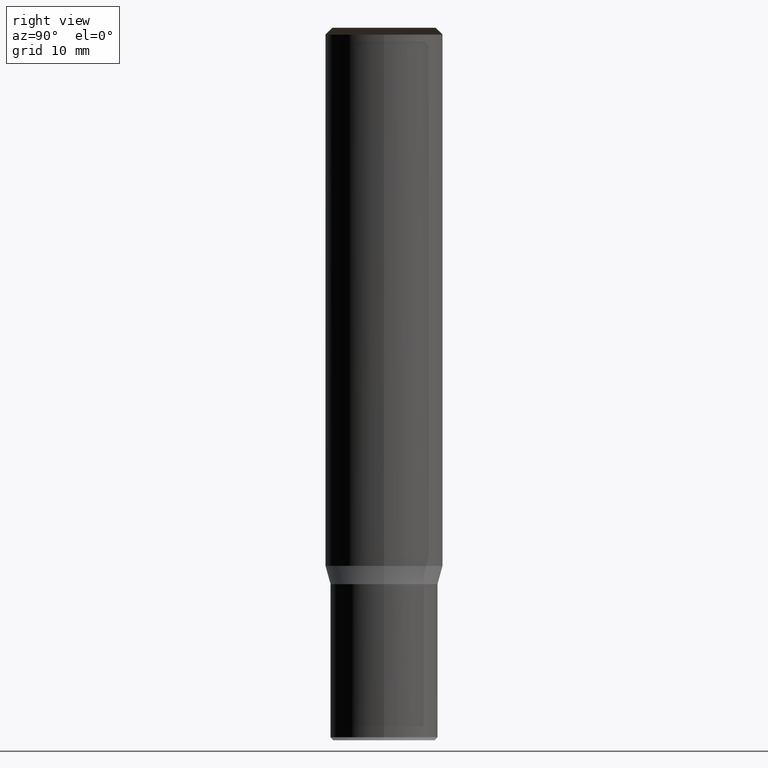
[diagram: clean part render]
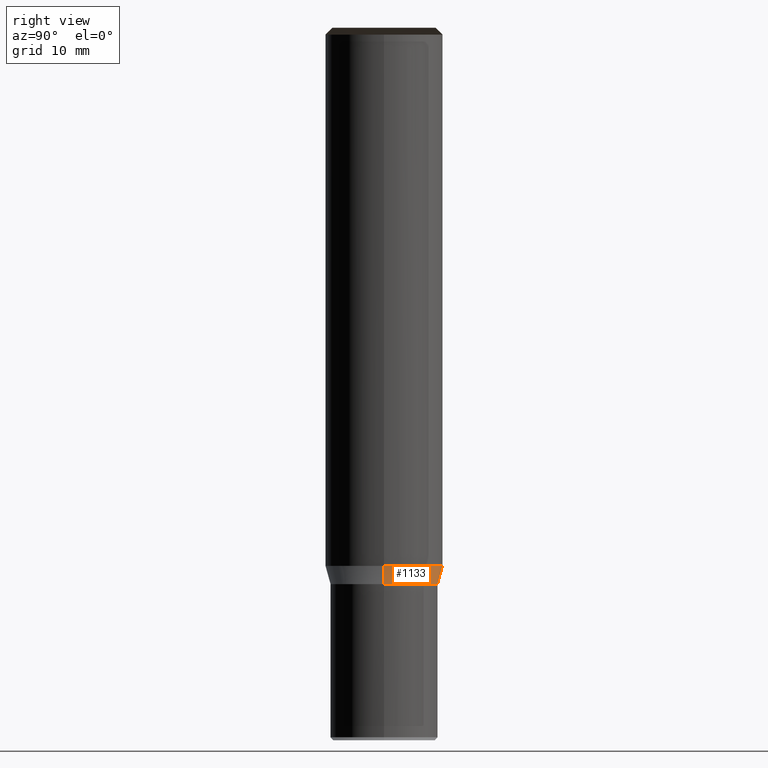
[diagram: same view with one face highlighted and labeled with its STEP entity id]
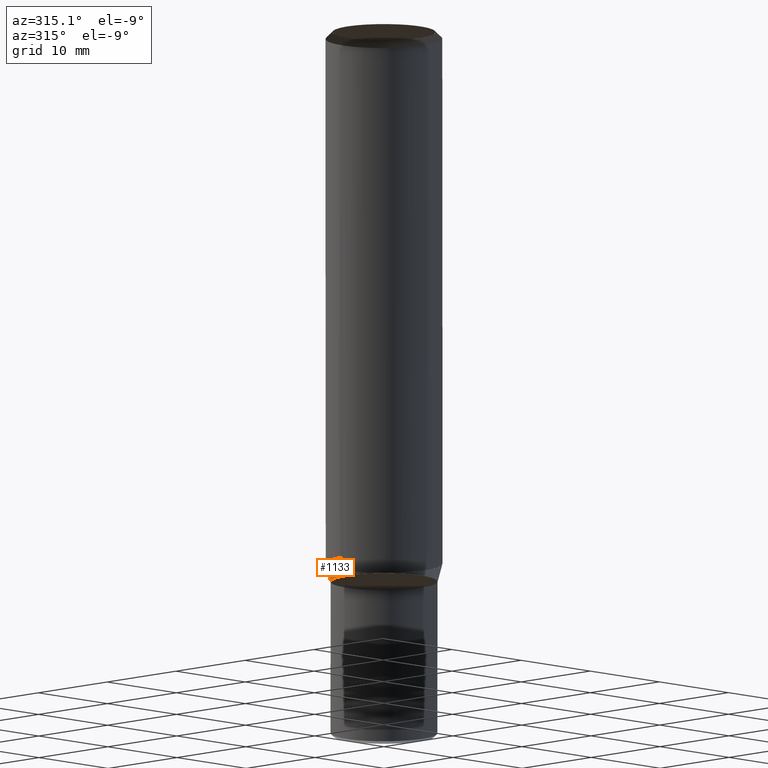
[diagram: same view with one face highlighted and labeled with its STEP entity id]
A machine part, right view. The second image highlights one B-rep face of the part: STEP entity #1133.
A second angle (auxiliary view) of the same face is appended — the face is thin or edge-on in the first view.
In plain terms, the highlighted face is a freeform B-spline surface patch.
Its self-contained STEP definition (entity closure, byte-faithful):
#903=CARTESIAN_POINT('',(5.5,0.0,-1.86601978));
#904=CARTESIAN_POINT('',(5.5,5.5,-1.86601978));
#905=CARTESIAN_POINT('',(0.0,5.5,-1.86601978));
#906=CARTESIAN_POINT('',(-5.5,5.5,-1.86601978));
#907=CARTESIAN_POINT('',(-5.5,0.0,-1.86601978));
#918=CARTESIAN_POINT('',(6.0,0.0,-0.0));
#919=CARTESIAN_POINT('',(6.0,6.0,-0.0));
#920=CARTESIAN_POINT('',(0.0,6.0,-0.0));
#921=CARTESIAN_POINT('',(-6.0,6.0,-0.0));
#922=CARTESIAN_POINT('',(-6.0,0.0,-0.0));
#1114=(
BOUNDED_SURFACE()
B_SPLINE_SURFACE(1,2,(
(#903,#904,#905,#906,#907),
(#918,#919,#920,#921,#922)
), .UNSPECIFIED.,.F.,.F.,.F.)
B_SPLINE_SURFACE_WITH_KNOTS((2,2),(3,2,3),(
0.0,1.0),(
0.0,0.5,1.0), .UNSPECIFIED.)
GEOMETRIC_REPRESENTATION_ITEM()
RATIONAL_B_SPLINE_SURFACE(((1.0,0.707106781187,1.0,0.707106781187,1.0),
(1.0,0.707106781187,1.0,0.707106781187,1.0)
))
REPRESENTATION_ITEM('')
SURFACE()
);
#1115=(
BOUNDED_CURVE()
B_SPLINE_CURVE(2,(#918,#919,#920,#921,#922),.UNSPECIFIED.,.F.,.F.)
B_SPLINE_CURVE_WITH_KNOTS((3,2,3),
(0.0,0.5,1.0),.UNSPECIFIED.)
CURVE()
GEOMETRIC_REPRESENTATION_ITEM()
RATIONAL_B_SPLINE_CURVE((1.0,0.707106781187,1.0,0.707106781187,1.0))
REPRESENTATION_ITEM('')
);
#1116=(
BOUNDED_CURVE()
B_SPLINE_CURVE(1,(#922,#907),.UNSPECIFIED.,.F.,.F.)
B_SPLINE_CURVE_WITH_KNOTS((2,2),
(0.0,1.0),.UNSPECIFIED.)
CURVE()
GEOMETRIC_REPRESENTATION_ITEM()
RATIONAL_B_SPLINE_CURVE((1.0,1.0))
REPRESENTATION_ITEM('')
);
#1117=(
BOUNDED_CURVE()
B_SPLINE_CURVE(2,(#907,#906,#905,#904,#903),.UNSPECIFIED.,.F.,.F.)
B_SPLINE_CURVE_WITH_KNOTS((3,2,3),
(0.0,0.5,1.0),.UNSPECIFIED.)
CURVE()
GEOMETRIC_REPRESENTATION_ITEM()
RATIONAL_B_SPLINE_CURVE((1.0,0.707106781187,1.0,0.707106781187,1.0))
REPRESENTATION_ITEM('')
);
#1118=(
BOUNDED_CURVE()
B_SPLINE_CURVE(1,(#903,#918),.UNSPECIFIED.,.F.,.F.)
B_SPLINE_CURVE_WITH_KNOTS((2,2),
(0.0,1.0),.UNSPECIFIED.)
CURVE()
GEOMETRIC_REPRESENTATION_ITEM()
RATIONAL_B_SPLINE_CURVE((1.0,1.0))
REPRESENTATION_ITEM('')
);
#1119=VERTEX_POINT('',#903);
#1120=VERTEX_POINT('',#907);
#1121=VERTEX_POINT('',#918);
#1122=VERTEX_POINT('',#922);
#1123=EDGE_CURVE('',#1121,#1122,#1115,.T.);
#1124=EDGE_CURVE('',#1122,#1120,#1116,.T.);
#1125=EDGE_CURVE('',#1120,#1119,#1117,.T.);
#1126=EDGE_CURVE('',#1119,#1121,#1118,.T.);
#1127=ORIENTED_EDGE('',*,*,#1123,.T.);
#1128=ORIENTED_EDGE('',*,*,#1124,.T.);
#1129=ORIENTED_EDGE('',*,*,#1125,.T.);
#1130=ORIENTED_EDGE('',*,*,#1126,.T.);
#1131=EDGE_LOOP('',(#1127,#1128,#1129,#1130));
#1132=FACE_OUTER_BOUND('',#1131,.T.);
#1133=ADVANCED_FACE('',(#1132),#1114,.T.);